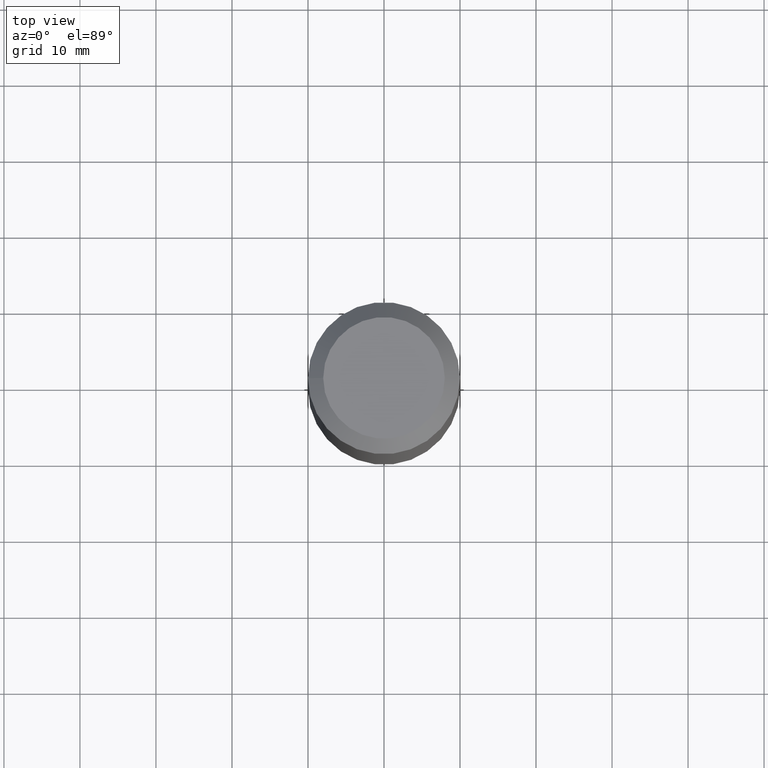
[diagram: clean part render]
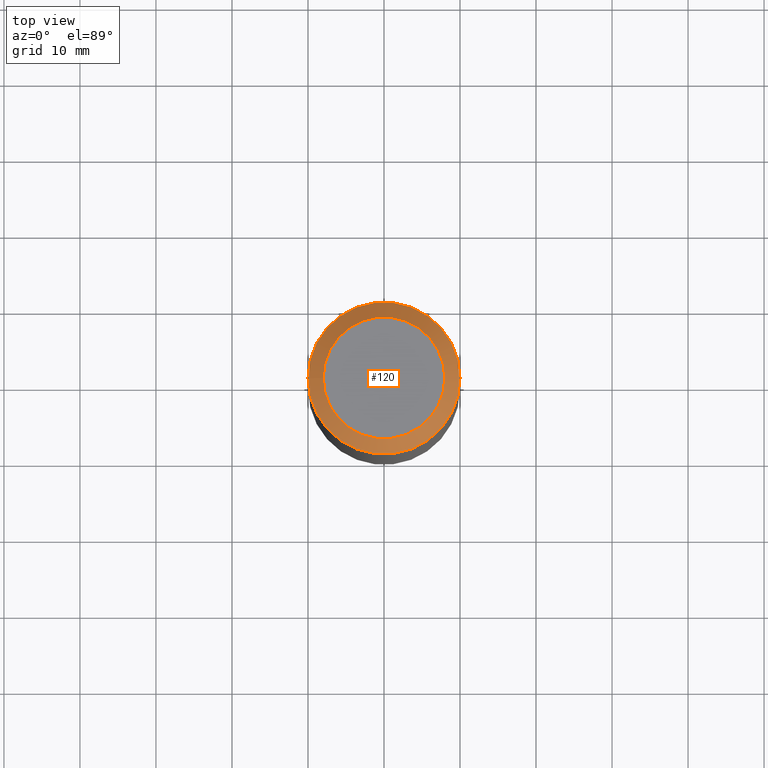
[diagram: same view with one face highlighted and labeled with its STEP entity id]
A machine part, top view. The second image highlights one B-rep face of the part: STEP entity #120.
In plain terms, the highlighted conical surface has half-angle 45 deg.
Its self-contained STEP definition (entity closure, byte-faithful):
#5 = AXIS2_PLACEMENT_3D ( 'NONE', #21, #60, #72 ) ;
#21 = CARTESIAN_POINT ( 'NONE',  ( -1.396592535537254604E-14, 0.0000000000000000000, -2.000000000000001776 ) ) ;
#22 = ORIENTED_EDGE ( 'NONE', *, *, #55, .F. ) ;
#23 = FACE_BOUND ( 'NONE', #176, .T. ) ;
#37 = CARTESIAN_POINT ( 'NONE',  ( 0.0000000000000000000, 0.0000000000000000000, 0.0000000000000000000 ) ) ;
#49 = EDGE_CURVE ( 'NONE', #127, #127, #83, .T. ) ;
#55 = EDGE_CURVE ( 'NONE', #174, #174, #121, .T. ) ;
#58 = DIRECTION ( 'NONE',  ( -1.000000000000000000, 0.0000000000000000000, 6.982962677686266711E-15 ) ) ;
#60 = DIRECTION ( 'NONE',  ( -6.982962677686266711E-15, 0.0000000000000000000, -1.000000000000000000 ) ) ;
#62 = CARTESIAN_POINT ( 'NONE',  ( 0.0000000000000000000, 0.0000000000000000000, 0.0000000000000000000 ) ) ;
#71 = DIRECTION ( 'NONE',  ( -1.000000000000000000, 0.0000000000000000000, 6.982962677686266711E-15 ) ) ;
#72 = DIRECTION ( 'NONE',  ( -1.000000000000000000, 0.0000000000000000000, 6.982261990806648555E-15 ) ) ;
#83 = CIRCLE ( 'NONE', #95, 7.999999999999992895 ) ;
#86 = CARTESIAN_POINT ( 'NONE',  ( -10.00000000000001421, 0.0000000000000000000, -1.999999999999932054 ) ) ;
#95 = AXIS2_PLACEMENT_3D ( 'NONE', #62, #114, #71 ) ;
#100 = ORIENTED_EDGE ( 'NONE', *, *, #49, .T. ) ;
#101 = CARTESIAN_POINT ( 'NONE',  ( -7.999999999999992895, 0.0000000000000000000, 5.586370142149008320E-14 ) ) ;
#112 = EDGE_LOOP ( 'NONE', ( #22 ) ) ;
#114 = DIRECTION ( 'NONE',  ( -6.982962677686266711E-15, 0.0000000000000000000, -1.000000000000000000 ) ) ;
#120 = ADVANCED_FACE ( 'NONE', ( #132, #23 ), #172, .T. ) ;
#121 = CIRCLE ( 'NONE', #5, 10.00000000000000000 ) ;
#124 = AXIS2_PLACEMENT_3D ( 'NONE', #37, #149, #58 ) ;
#127 = VERTEX_POINT ( 'NONE', #101 ) ;
#132 = FACE_OUTER_BOUND ( 'NONE', #112, .T. ) ;
#149 = DIRECTION ( 'NONE',  ( -6.982962677686266711E-15, 0.0000000000000000000, -1.000000000000000000 ) ) ;
#172 = CONICAL_SURFACE ( 'NONE', #124, 7.999999999999992895, 0.7853981633974496113 ) ;
#174 = VERTEX_POINT ( 'NONE', #86 ) ;
#176 = EDGE_LOOP ( 'NONE', ( #100 ) ) ;